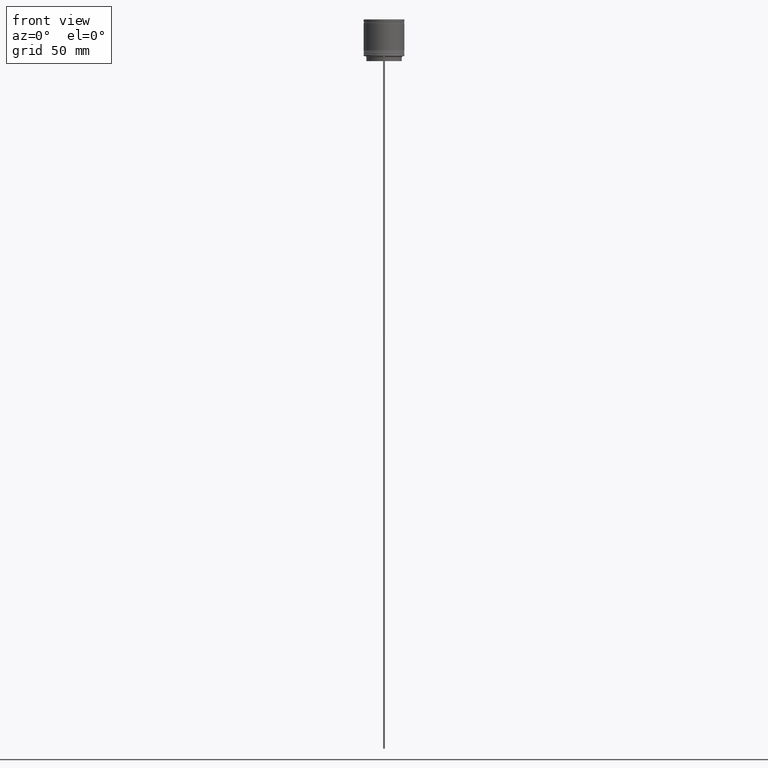
[diagram: clean part render]
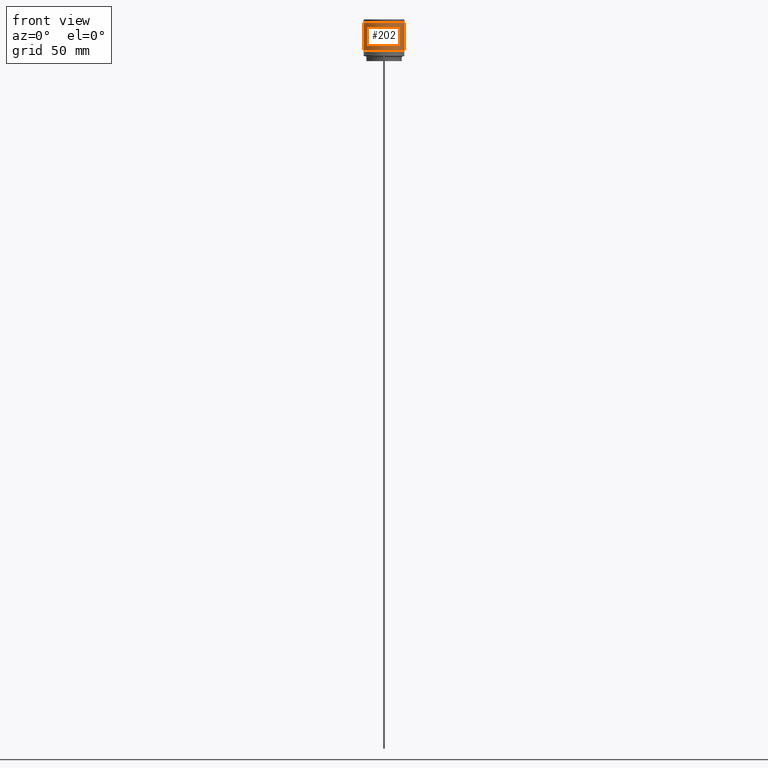
[diagram: same view with one face highlighted and labeled with its STEP entity id]
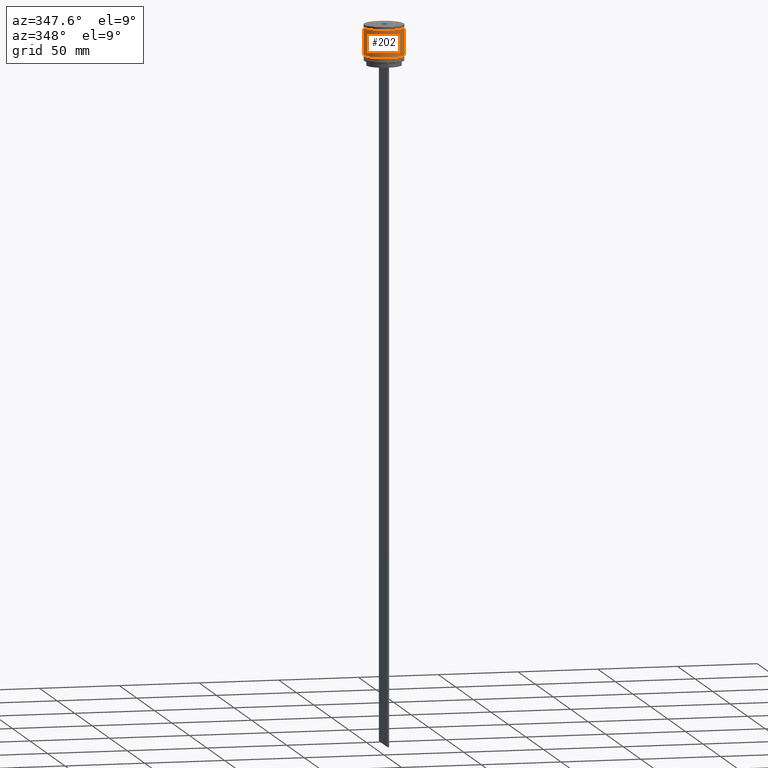
[diagram: same view with one face highlighted and labeled with its STEP entity id]
A machine part, front view. The second image highlights one B-rep face of the part: STEP entity #202.
A second angle (auxiliary view) of the same face is appended — the face is thin or edge-on in the first view.
In plain terms, the highlighted cylindrical surface (edge-blend (fillet) strip) has radius 12.5 mm, axis along (-0, -0, 1).
Its self-contained STEP definition (entity closure, byte-faithful):
#56 = LINE ( 'NONE', #1194, #676 ) ;
#85 = AXIS2_PLACEMENT_3D ( 'NONE', #960, #1125, #974 ) ;
#128 = CARTESIAN_POINT ( 'NONE',  ( 12.50000000000000178, 0.000000000000000000, -19.00000000000000000 ) ) ;
#202 = ADVANCED_FACE ( 'NONE', ( #904 ), #1562, .T. ) ;
#221 = AXIS2_PLACEMENT_3D ( 'NONE', #1759, #1083, #1731 ) ;
#291 = CIRCLE ( 'NONE', #85, 12.50000000000000178 ) ;
#330 = VECTOR ( 'NONE', #1690, 1000.000000000000000 ) ;
#382 = DIRECTION ( 'NONE',  ( 1.000000000000000000, 0.000000000000000000, 0.000000000000000000 ) ) ;
#409 = VERTEX_POINT ( 'NONE', #128 ) ;
#573 = CARTESIAN_POINT ( 'NONE',  ( -12.50000000000000355, 1.530808498934191916E-15, -19.00000000000000000 ) ) ;
#676 = VECTOR ( 'NONE', #1319, 1000.000000000000000 ) ;
#684 = VERTEX_POINT ( 'NONE', #573 ) ;
#734 = EDGE_CURVE ( 'NONE', #1903, #1527, #1220, .T. ) ;
#744 = CARTESIAN_POINT ( 'NONE',  ( 12.50000000000000000, 0.000000000000000000, 0.000000000000000000 ) ) ;
#904 = FACE_OUTER_BOUND ( 'NONE', #1696, .T. ) ;
#954 = ORIENTED_EDGE ( 'NONE', *, *, #734, .F. ) ;
#960 = CARTESIAN_POINT ( 'NONE',  ( 0.000000000000000000, 0.000000000000000000, -19.00000000000000000 ) ) ;
#974 = DIRECTION ( 'NONE',  ( 1.000000000000000000, 0.000000000000000000, 0.000000000000000000 ) ) ;
#1083 = DIRECTION ( 'NONE',  ( -0.000000000000000000, -0.000000000000000000, 1.000000000000000000 ) ) ;
#1125 = DIRECTION ( 'NONE',  ( -0.000000000000000000, -0.000000000000000000, 1.000000000000000000 ) ) ;
#1127 = CARTESIAN_POINT ( 'NONE',  ( -12.49999999999999645, 1.530808498934191324E-15, -2.199999999999994404 ) ) ;
#1194 = CARTESIAN_POINT ( 'NONE',  ( -12.50000000000000000, 1.530808498934191521E-15, 0.000000000000000000 ) ) ;
#1220 = CIRCLE ( 'NONE', #1443, 12.49999999999999645 ) ;
#1319 = DIRECTION ( 'NONE',  ( -0.000000000000000000, -0.000000000000000000, 1.000000000000000000 ) ) ;
#1400 = ORIENTED_EDGE ( 'NONE', *, *, #2079, .F. ) ;
#1426 = ORIENTED_EDGE ( 'NONE', *, *, #1734, .T. ) ;
#1443 = AXIS2_PLACEMENT_3D ( 'NONE', #1840, #1884, #382 ) ;
#1527 = VERTEX_POINT ( 'NONE', #1682 ) ;
#1558 = LINE ( 'NONE', #744, #330 ) ;
#1562 = CYLINDRICAL_SURFACE ( 'NONE', #221, 12.50000000000000000 ) ;
#1628 = ORIENTED_EDGE ( 'NONE', *, *, #1633, .T. ) ;
#1633 = EDGE_CURVE ( 'NONE', #684, #409, #291, .T. ) ;
#1682 = CARTESIAN_POINT ( 'NONE',  ( 12.49999999999999645, 0.000000000000000000, -2.199999999999994404 ) ) ;
#1690 = DIRECTION ( 'NONE',  ( -0.000000000000000000, -0.000000000000000000, 1.000000000000000000 ) ) ;
#1696 = EDGE_LOOP ( 'NONE', ( #1400, #1628, #1426, #954 ) ) ;
#1731 = DIRECTION ( 'NONE',  ( 1.000000000000000000, 0.000000000000000000, 0.000000000000000000 ) ) ;
#1734 = EDGE_CURVE ( 'NONE', #409, #1527, #1558, .T. ) ;
#1759 = CARTESIAN_POINT ( 'NONE',  ( 0.000000000000000000, 0.000000000000000000, 0.000000000000000000 ) ) ;
#1840 = CARTESIAN_POINT ( 'NONE',  ( 0.000000000000000000, 0.000000000000000000, -2.199999999999994404 ) ) ;
#1884 = DIRECTION ( 'NONE',  ( -0.000000000000000000, -0.000000000000000000, 1.000000000000000000 ) ) ;
#1903 = VERTEX_POINT ( 'NONE', #1127 ) ;
#2079 = EDGE_CURVE ( 'NONE', #684, #1903, #56, .T. ) ;